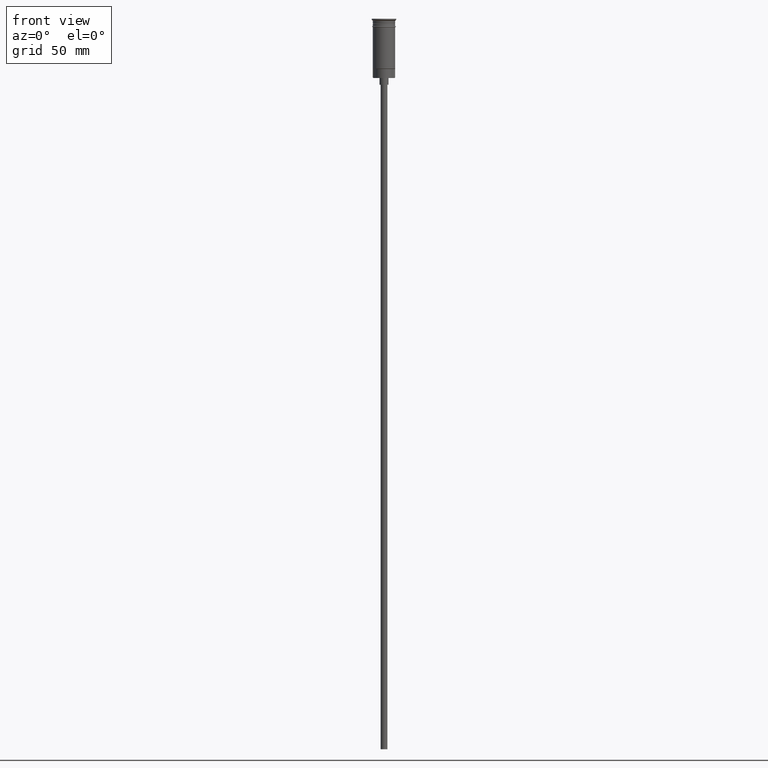
[diagram: clean part render]
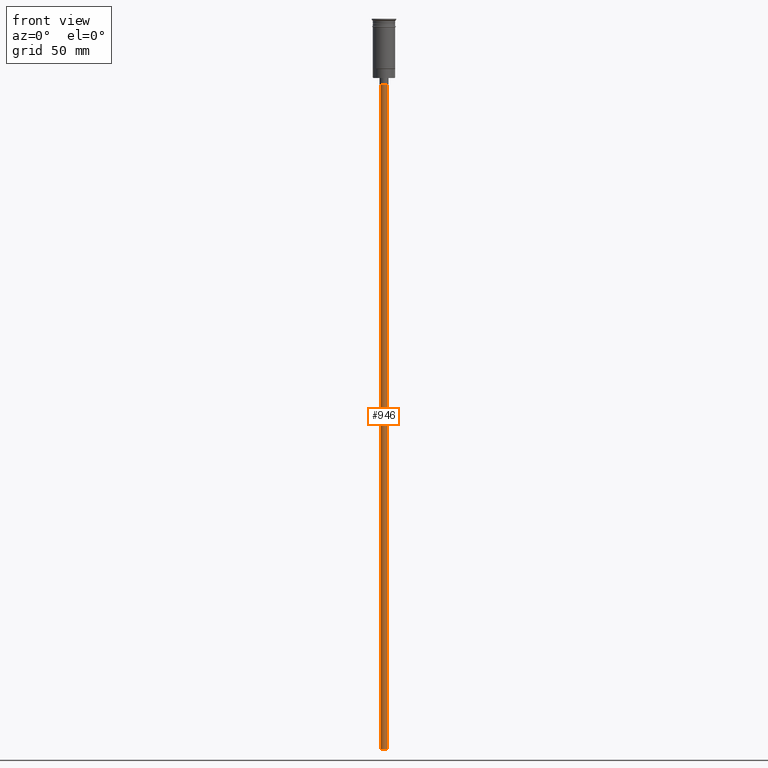
[diagram: same view with one face highlighted and labeled with its STEP entity id]
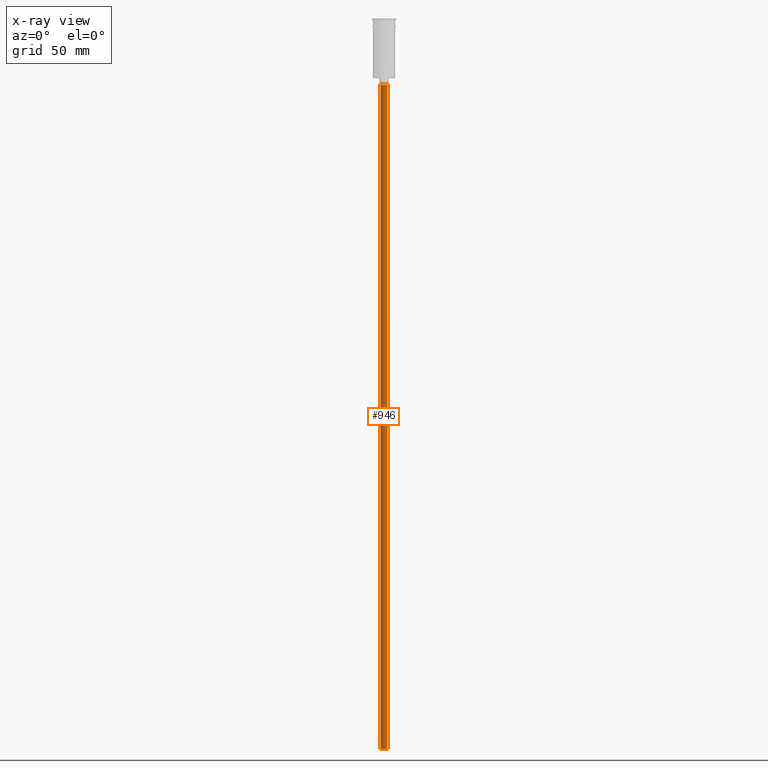
[diagram: x-ray of the same camera — body ghosted, the highlighted face saturated]
A machine part, front view. The second image highlights one B-rep face of the part: STEP entity #946.
The next image is the same camera in x-ray: the body ghosted, the highlighted face saturated — about 0% of this face is hidden behind the body in this view.
In plain terms, the highlighted cylindrical surface (edge-blend (fillet) strip) has radius 1.5 mm, axis along (-0, -0, 1).
Its self-contained STEP definition (entity closure, byte-faithful):
#17 = EDGE_CURVE ( 'NONE', #546, #990, #1414, .T. ) ;
#26 = ORIENTED_EDGE ( 'NONE', *, *, #17, .F. ) ;
#155 = EDGE_CURVE ( 'NONE', #240, #990, #1334, .T. ) ;
#240 = VERTEX_POINT ( 'NONE', #500 ) ;
#306 = DIRECTION ( 'NONE',  ( -1.000000000000000000, 0.000000000000000000, 0.000000000000000000 ) ) ;
#325 = AXIS2_PLACEMENT_3D ( 'NONE', #985, #1474, #1115 ) ;
#352 = EDGE_CURVE ( 'NONE', #1482, #240, #1040, .T. ) ;
#385 = ORIENTED_EDGE ( 'NONE', *, *, #1047, .F. ) ;
#451 = CARTESIAN_POINT ( 'NONE',  ( 0.000000000000000000, 0.000000000000000000, -326.5000000000000000 ) ) ;
#455 = AXIS2_PLACEMENT_3D ( 'NONE', #467, #962, #306 ) ;
#467 = CARTESIAN_POINT ( 'NONE',  ( 0.000000000000000000, 0.000000000000000000, -29.50000000000000000 ) ) ;
#500 = CARTESIAN_POINT ( 'NONE',  ( 1.500000000000000222, 0.000000000000000000, -29.50000000000000000 ) ) ;
#523 = DIRECTION ( 'NONE',  ( -0.000000000000000000, -0.000000000000000000, 1.000000000000000000 ) ) ;
#546 = VERTEX_POINT ( 'NONE', #1085 ) ;
#640 = CIRCLE ( 'NONE', #325, 1.500000000000000222 ) ;
#745 = VECTOR ( 'NONE', #523, 1000.000000000000000 ) ;
#767 = ORIENTED_EDGE ( 'NONE', *, *, #155, .T. ) ;
#804 = CARTESIAN_POINT ( 'NONE',  ( -1.500000000000000222, 1.836970198721030181E-16, -326.5000000000000000 ) ) ;
#832 = CARTESIAN_POINT ( 'NONE',  ( 1.500000000000000222, 0.000000000000000000, -326.5000000000000000 ) ) ;
#946 = ADVANCED_FACE ( 'NONE', ( #1560 ), #949, .T. ) ;
#949 = CYLINDRICAL_SURFACE ( 'NONE', #1542, 1.500000000000000222 ) ;
#962 = DIRECTION ( 'NONE',  ( 0.000000000000000000, 0.000000000000000000, -1.000000000000000000 ) ) ;
#985 = CARTESIAN_POINT ( 'NONE',  ( 0.000000000000000000, 0.000000000000000000, -326.5000000000000000 ) ) ;
#990 = VERTEX_POINT ( 'NONE', #1208 ) ;
#1026 = EDGE_LOOP ( 'NONE', ( #26, #385, #1251, #767 ) ) ;
#1040 = LINE ( 'NONE', #1529, #1181 ) ;
#1047 = EDGE_CURVE ( 'NONE', #1482, #546, #640, .T. ) ;
#1085 = CARTESIAN_POINT ( 'NONE',  ( -1.500000000000000222, 1.836970198721030181E-16, -326.5000000000000000 ) ) ;
#1115 = DIRECTION ( 'NONE',  ( -1.000000000000000000, 0.000000000000000000, 0.000000000000000000 ) ) ;
#1181 = VECTOR ( 'NONE', #1376, 1000.000000000000000 ) ;
#1208 = CARTESIAN_POINT ( 'NONE',  ( -1.500000000000000222, 1.836970198721030181E-16, -29.50000000000000000 ) ) ;
#1224 = DIRECTION ( 'NONE',  ( -0.000000000000000000, -0.000000000000000000, 1.000000000000000000 ) ) ;
#1251 = ORIENTED_EDGE ( 'NONE', *, *, #352, .T. ) ;
#1334 = CIRCLE ( 'NONE', #455, 1.500000000000000222 ) ;
#1335 = DIRECTION ( 'NONE',  ( 1.000000000000000000, 0.000000000000000000, 0.000000000000000000 ) ) ;
#1376 = DIRECTION ( 'NONE',  ( -0.000000000000000000, -0.000000000000000000, 1.000000000000000000 ) ) ;
#1414 = LINE ( 'NONE', #804, #745 ) ;
#1474 = DIRECTION ( 'NONE',  ( 0.000000000000000000, 0.000000000000000000, -1.000000000000000000 ) ) ;
#1482 = VERTEX_POINT ( 'NONE', #832 ) ;
#1529 = CARTESIAN_POINT ( 'NONE',  ( 1.500000000000000222, 0.000000000000000000, -326.5000000000000000 ) ) ;
#1542 = AXIS2_PLACEMENT_3D ( 'NONE', #451, #1224, #1335 ) ;
#1560 = FACE_OUTER_BOUND ( 'NONE', #1026, .T. ) ;